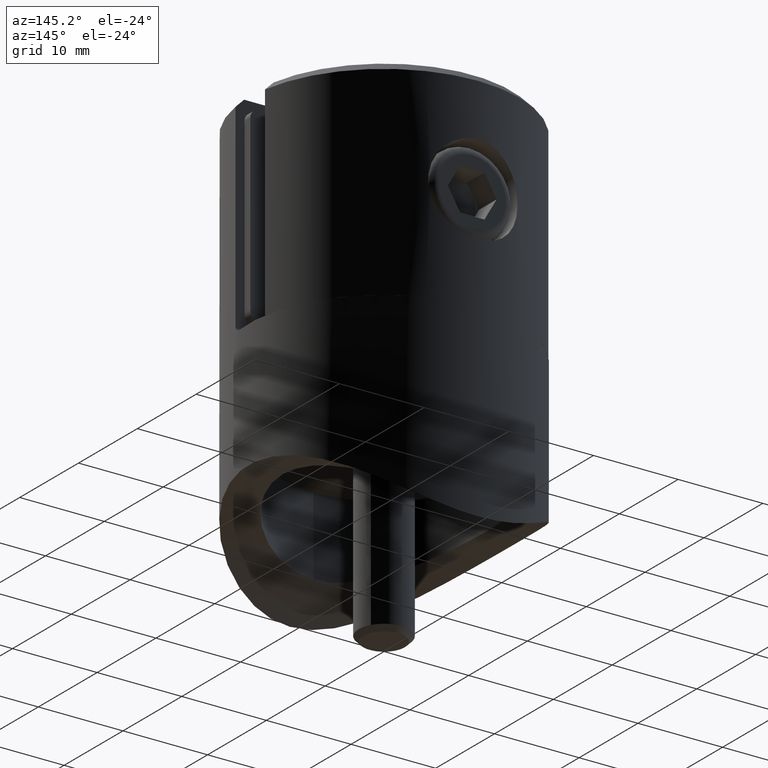
[diagram: clean part render]
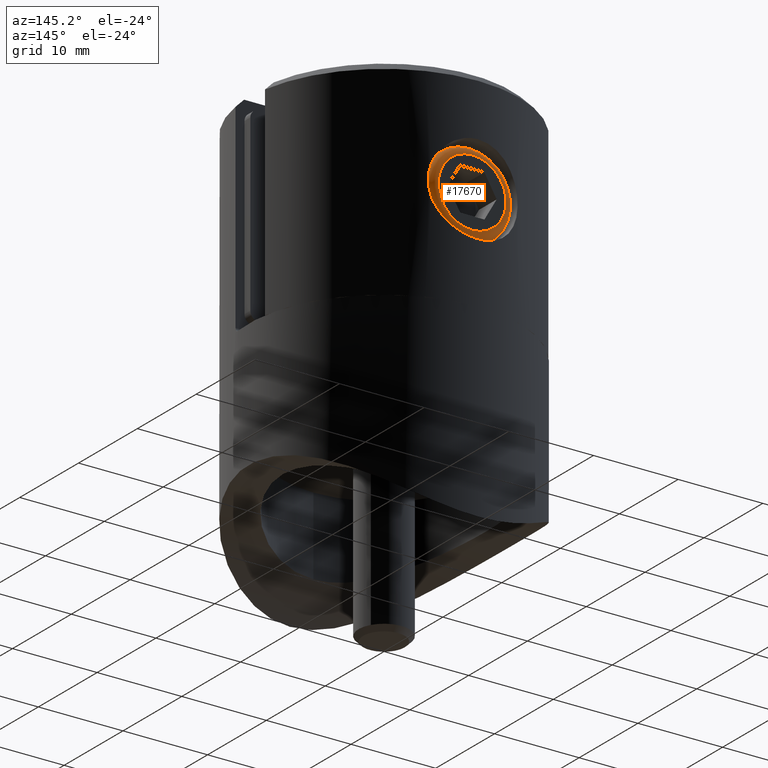
[diagram: same view with one face highlighted and labeled with its STEP entity id]
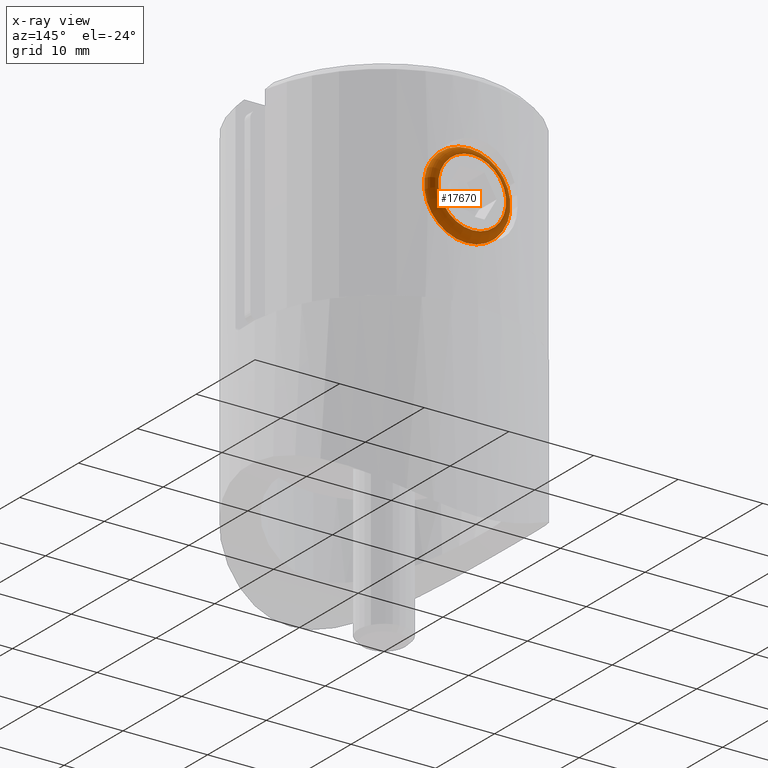
[diagram: x-ray of the same camera — body ghosted, the highlighted face saturated]
A machine part, auxiliary view. The second image highlights one B-rep face of the part: STEP entity #17670.
The next image is the same camera in x-ray: the body ghosted, the highlighted face saturated — about 0% of this face is hidden behind the body in this view.
In plain terms, the highlighted toroidal blend (fillet) surface has major radius 4 mm and minor (blend) radius 1 mm.
Its self-contained STEP definition (entity closure, byte-faithful):
#730 = EDGE_LOOP ( 'NONE', ( #2843 ) ) ;
#2028 = DIRECTION ( 'NONE',  ( 0.000000000000000000, 1.000000000000000000, 0.000000000000000000 ) ) ;
#2270 = CIRCLE ( 'NONE', #4821, 5.000000000000000000 ) ;
#2348 = EDGE_CURVE ( 'NONE', #7294, #7294, #2270, .T. ) ;
#2655 = EDGE_CURVE ( 'NONE', #8149, #8149, #3799, .T. ) ;
#2843 = ORIENTED_EDGE ( 'NONE', *, *, #2348, .F. ) ;
#3799 = CIRCLE ( 'NONE', #6681, 4.000000000000000000 ) ;
#4702 = DIRECTION ( 'NONE',  ( 0.000000000000000000, 0.000000000000000000, 1.000000000000000000 ) ) ;
#4821 = AXIS2_PLACEMENT_3D ( 'NONE', #6726, #12337, #4702 ) ;
#6342 = CARTESIAN_POINT ( 'NONE',  ( 0.000000000000000000, 5.000000000000000000, 0.000000000000000000 ) ) ;
#6681 = AXIS2_PLACEMENT_3D ( 'NONE', #11843, #2028, #7818 ) ;
#6726 = CARTESIAN_POINT ( 'NONE',  ( 0.000000000000000000, 5.000000000000000000, 0.000000000000000000 ) ) ;
#7080 = TOROIDAL_SURFACE ( 'NONE', #14822, 4.000000000000000000, 1.000000000000000000 ) ;
#7294 = VERTEX_POINT ( 'NONE', #16323 ) ;
#7818 = DIRECTION ( 'NONE',  ( 0.000000000000000000, 0.000000000000000000, 1.000000000000000000 ) ) ;
#8149 = VERTEX_POINT ( 'NONE', #10546 ) ;
#8818 = FACE_OUTER_BOUND ( 'NONE', #730, .T. ) ;
#10417 = DIRECTION ( 'NONE',  ( 0.000000000000000000, 1.000000000000000000, 0.000000000000000000 ) ) ;
#10477 = DIRECTION ( 'NONE',  ( 0.000000000000000000, 0.000000000000000000, 1.000000000000000000 ) ) ;
#10546 = CARTESIAN_POINT ( 'NONE',  ( 0.000000000000000000, 6.000000000000000000, 4.000000000000000000 ) ) ;
#10854 = ORIENTED_EDGE ( 'NONE', *, *, #2655, .F. ) ;
#11444 = FACE_OUTER_BOUND ( 'NONE', #11810, .T. ) ;
#11810 = EDGE_LOOP ( 'NONE', ( #10854 ) ) ;
#11843 = CARTESIAN_POINT ( 'NONE',  ( 0.000000000000000000, 6.000000000000000000, 0.000000000000000000 ) ) ;
#12337 = DIRECTION ( 'NONE',  ( -0.000000000000000000, -1.000000000000000000, -0.000000000000000000 ) ) ;
#14822 = AXIS2_PLACEMENT_3D ( 'NONE', #6342, #10417, #10477 ) ;
#16323 = CARTESIAN_POINT ( 'NONE',  ( 0.000000000000000000, 5.000000000000000000, 5.000000000000000000 ) ) ;
#17670 = ADVANCED_FACE ( 'NONE', ( #8818, #11444 ), #7080, .T. ) ;